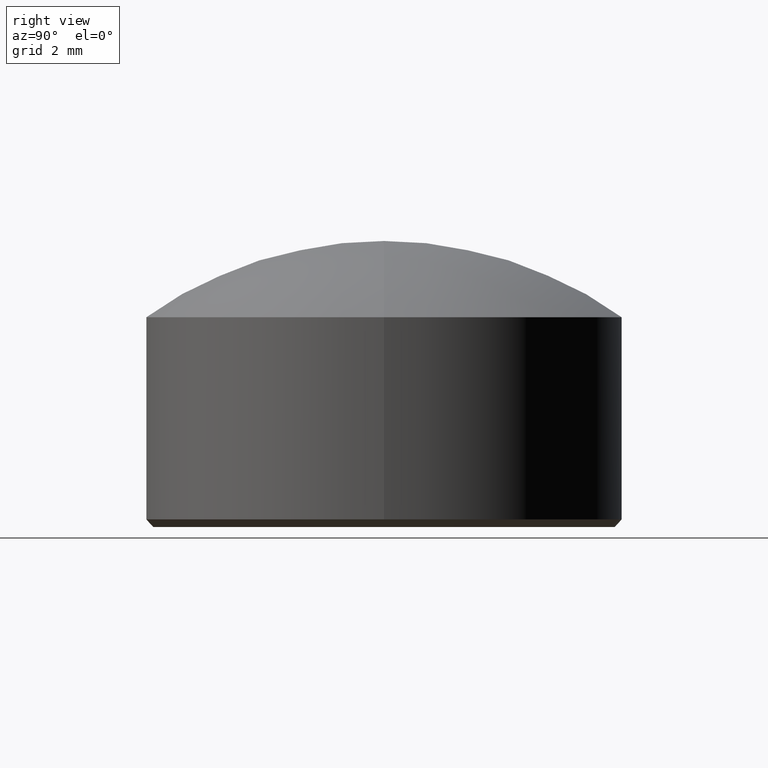
[diagram: clean part render]
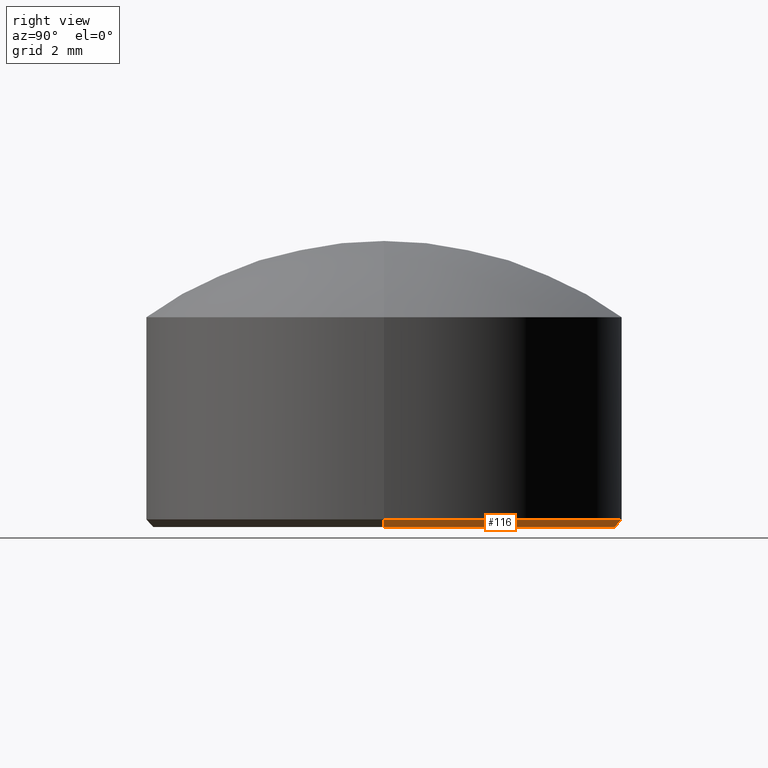
[diagram: same view with one face highlighted and labeled with its STEP entity id]
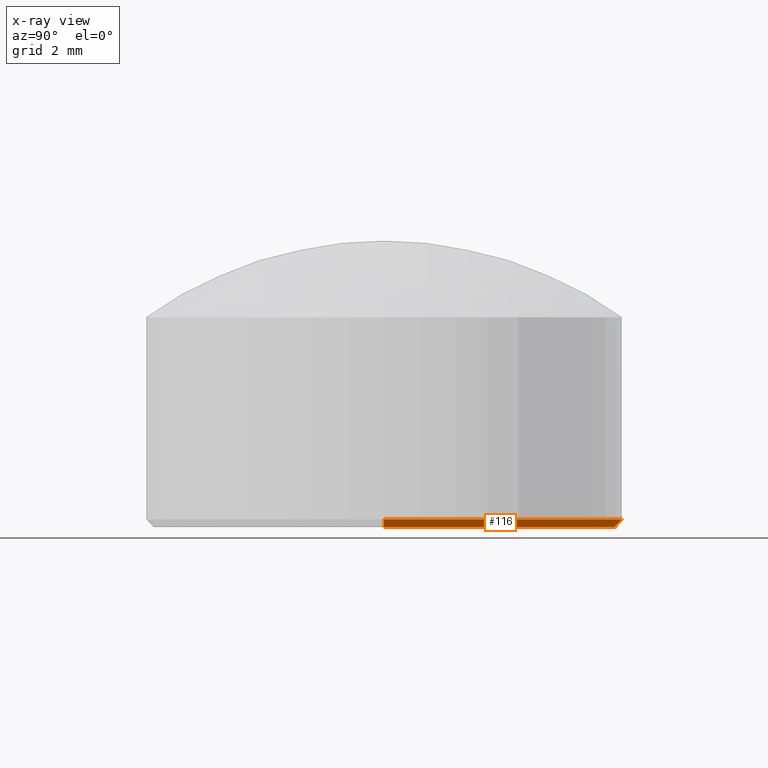
[diagram: x-ray of the same camera — body ghosted, the highlighted face saturated]
A machine part, right view. The second image highlights one B-rep face of the part: STEP entity #116.
The next image is the same camera in x-ray: the body ghosted, the highlighted face saturated — about 0% of this face is hidden behind the body in this view.
In plain terms, the highlighted conical surface has half-angle 45 deg.
Its self-contained STEP definition (entity closure, byte-faithful):
#3 = CARTESIAN_POINT ( 'NONE',  ( 6.250000000000000000, 0.000000000000000000, 0.2000000000000005107 ) ) ;
#11 = DIRECTION ( 'NONE',  ( 1.000000000000000000, 0.000000000000000000, 0.000000000000000000 ) ) ;
#13 = DIRECTION ( 'NONE',  ( -0.7071067811865489050, 8.659560562354951347E-17, 0.7071067811865460184 ) ) ;
#16 = LINE ( 'NONE', #3, #36 ) ;
#26 = CARTESIAN_POINT ( 'NONE',  ( 0.000000000000000000, 0.000000000000000000, 0.000000000000000000 ) ) ;
#28 = CONICAL_SURFACE ( 'NONE', #208, 6.250000000000000000, 0.7853981633974503884 ) ;
#30 = CIRCLE ( 'NONE', #132, 6.250000000000000000 ) ;
#34 = CARTESIAN_POINT ( 'NONE',  ( 6.250000000000000000, 7.654042494670957606E-16, 0.2000000000000005107 ) ) ;
#36 = VECTOR ( 'NONE', #134, 1000.000000000000114 ) ;
#44 = DIRECTION ( 'NONE',  ( -0.000000000000000000, -0.000000000000000000, -1.000000000000000000 ) ) ;
#45 = ORIENTED_EDGE ( 'NONE', *, *, #70, .F. ) ;
#49 = FACE_OUTER_BOUND ( 'NONE', #59, .T. ) ;
#50 = AXIS2_PLACEMENT_3D ( 'NONE', #26, #44, #195 ) ;
#53 = EDGE_CURVE ( 'NONE', #209, #121, #30, .T. ) ;
#59 = EDGE_LOOP ( 'NONE', ( #187, #196, #207, #45 ) ) ;
#70 = EDGE_CURVE ( 'NONE', #125, #209, #16, .T. ) ;
#79 = LINE ( 'NONE', #122, #154 ) ;
#84 = DIRECTION ( 'NONE',  ( -0.000000000000000000, -0.000000000000000000, 1.000000000000000000 ) ) ;
#92 = DIRECTION ( 'NONE',  ( -0.000000000000000000, -0.000000000000000000, 1.000000000000000000 ) ) ;
#99 = CARTESIAN_POINT ( 'NONE',  ( -6.049999999999998934, 7.531577814756221078E-16, 0.000000000000000000 ) ) ;
#110 = CARTESIAN_POINT ( 'NONE',  ( -6.250000000000000000, 0.000000000000000000, 0.2000000000000005107 ) ) ;
#113 = CARTESIAN_POINT ( 'NONE',  ( 0.000000000000000000, 0.000000000000000000, 0.2000000000000005107 ) ) ;
#116 = ADVANCED_FACE ( 'NONE', ( #49 ), #28, .T. ) ;
#121 = VERTEX_POINT ( 'NONE', #110 ) ;
#122 = CARTESIAN_POINT ( 'NONE',  ( -6.250000000000000000, 7.654042494670957606E-16, 0.2000000000000005107 ) ) ;
#124 = CARTESIAN_POINT ( 'NONE',  ( 6.049999999999998934, 0.000000000000000000, 0.000000000000000000 ) ) ;
#125 = VERTEX_POINT ( 'NONE', #124 ) ;
#130 = DIRECTION ( 'NONE',  ( 1.000000000000000000, 0.000000000000000000, 0.000000000000000000 ) ) ;
#132 = AXIS2_PLACEMENT_3D ( 'NONE', #113, #84, #130 ) ;
#134 = DIRECTION ( 'NONE',  ( 0.7071067811865489050, 0.000000000000000000, 0.7071067811865460184 ) ) ;
#154 = VECTOR ( 'NONE', #13, 1000.000000000000114 ) ;
#166 = CIRCLE ( 'NONE', #50, 6.049999999999998934 ) ;
#175 = CARTESIAN_POINT ( 'NONE',  ( 0.000000000000000000, 0.000000000000000000, 0.2000000000000005107 ) ) ;
#186 = EDGE_CURVE ( 'NONE', #211, #121, #79, .T. ) ;
#187 = ORIENTED_EDGE ( 'NONE', *, *, #191, .F. ) ;
#191 = EDGE_CURVE ( 'NONE', #211, #125, #166, .T. ) ;
#195 = DIRECTION ( 'NONE',  ( 1.000000000000000000, 0.000000000000000000, 0.000000000000000000 ) ) ;
#196 = ORIENTED_EDGE ( 'NONE', *, *, #186, .T. ) ;
#207 = ORIENTED_EDGE ( 'NONE', *, *, #53, .F. ) ;
#208 = AXIS2_PLACEMENT_3D ( 'NONE', #175, #92, #11 ) ;
#209 = VERTEX_POINT ( 'NONE', #34 ) ;
#211 = VERTEX_POINT ( 'NONE', #99 ) ;